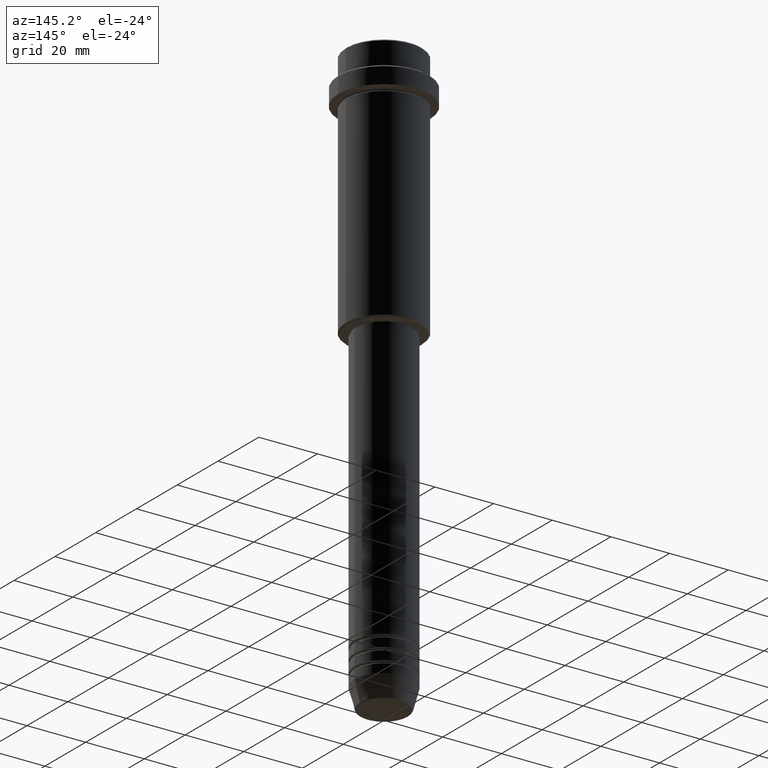
[diagram: clean part render]
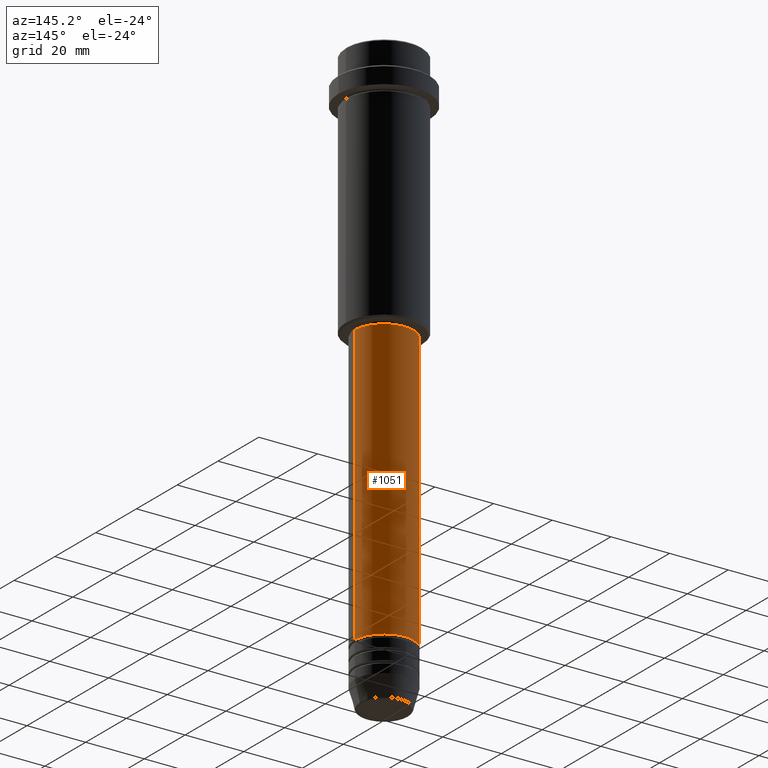
[diagram: same view with one face highlighted and labeled with its STEP entity id]
A machine part, auxiliary view. The second image highlights one B-rep face of the part: STEP entity #1051.
In plain terms, the highlighted cylindrical surface (edge-blend (fillet) strip) has radius 10 mm, axis along (-0, -0, 1).
Its self-contained STEP definition (entity closure, byte-faithful):
#16 = CARTESIAN_POINT ( 'NONE',  ( 10.00000000000000000, 0.000000000000000000, -180.9999999999999147 ) ) ;
#93 = EDGE_CURVE ( 'NONE', #169, #808, #902, .T. ) ;
#156 = VECTOR ( 'NONE', #1066, 1000.000000000000000 ) ;
#169 = VERTEX_POINT ( 'NONE', #1242 ) ;
#170 = FACE_OUTER_BOUND ( 'NONE', #351, .T. ) ;
#222 = CARTESIAN_POINT ( 'NONE',  ( 10.00000000000000178, 0.000000000000000000, 0.000000000000000000 ) ) ;
#233 = VECTOR ( 'NONE', #1300, 1000.000000000000000 ) ;
#329 = DIRECTION ( 'NONE',  ( -0.000000000000000000, -0.000000000000000000, 1.000000000000000000 ) ) ;
#351 = EDGE_LOOP ( 'NONE', ( #409, #992, #693, #920 ) ) ;
#385 = AXIS2_PLACEMENT_3D ( 'NONE', #505, #928, #510 ) ;
#397 = EDGE_CURVE ( 'NONE', #532, #808, #730, .T. ) ;
#409 = ORIENTED_EDGE ( 'NONE', *, *, #598, .T. ) ;
#462 = LINE ( 'NONE', #222, #233 ) ;
#490 = CYLINDRICAL_SURFACE ( 'NONE', #385, 10.00000000000000178 ) ;
#492 = CARTESIAN_POINT ( 'NONE',  ( -10.00000000000000178, 1.224646799147353454E-15, -86.00000000000000000 ) ) ;
#505 = CARTESIAN_POINT ( 'NONE',  ( 0.000000000000000000, 0.000000000000000000, 0.000000000000000000 ) ) ;
#510 = DIRECTION ( 'NONE',  ( 1.000000000000000000, 0.000000000000000000, 0.000000000000000000 ) ) ;
#532 = VERTEX_POINT ( 'NONE', #1260 ) ;
#560 = CARTESIAN_POINT ( 'NONE',  ( 0.000000000000000000, 0.000000000000000000, -180.9999999999999147 ) ) ;
#582 = CIRCLE ( 'NONE', #1389, 10.00000000000000000 ) ;
#598 = EDGE_CURVE ( 'NONE', #1015, #532, #582, .T. ) ;
#693 = ORIENTED_EDGE ( 'NONE', *, *, #93, .F. ) ;
#706 = CARTESIAN_POINT ( 'NONE',  ( -10.00000000000000178, 1.224646799147353454E-15, 0.000000000000000000 ) ) ;
#730 = LINE ( 'NONE', #706, #156 ) ;
#762 = DIRECTION ( 'NONE',  ( 1.000000000000000000, 0.000000000000000000, 0.000000000000000000 ) ) ;
#808 = VERTEX_POINT ( 'NONE', #492 ) ;
#902 = CIRCLE ( 'NONE', #1113, 10.00000000000000178 ) ;
#920 = ORIENTED_EDGE ( 'NONE', *, *, #1276, .F. ) ;
#928 = DIRECTION ( 'NONE',  ( -0.000000000000000000, -0.000000000000000000, 1.000000000000000000 ) ) ;
#989 = CARTESIAN_POINT ( 'NONE',  ( 0.000000000000000000, 0.000000000000000000, -86.00000000000000000 ) ) ;
#992 = ORIENTED_EDGE ( 'NONE', *, *, #397, .T. ) ;
#1015 = VERTEX_POINT ( 'NONE', #16 ) ;
#1051 = ADVANCED_FACE ( 'NONE', ( #170 ), #490, .T. ) ;
#1066 = DIRECTION ( 'NONE',  ( -0.000000000000000000, -0.000000000000000000, 1.000000000000000000 ) ) ;
#1083 = DIRECTION ( 'NONE',  ( 1.000000000000000000, 0.000000000000000000, 0.000000000000000000 ) ) ;
#1113 = AXIS2_PLACEMENT_3D ( 'NONE', #989, #1314, #1083 ) ;
#1242 = CARTESIAN_POINT ( 'NONE',  ( 10.00000000000000178, 0.000000000000000000, -86.00000000000000000 ) ) ;
#1260 = CARTESIAN_POINT ( 'NONE',  ( -10.00000000000000000, 1.224646799147353256E-15, -180.9999999999999147 ) ) ;
#1276 = EDGE_CURVE ( 'NONE', #1015, #169, #462, .T. ) ;
#1300 = DIRECTION ( 'NONE',  ( -0.000000000000000000, -0.000000000000000000, 1.000000000000000000 ) ) ;
#1314 = DIRECTION ( 'NONE',  ( -0.000000000000000000, -0.000000000000000000, 1.000000000000000000 ) ) ;
#1389 = AXIS2_PLACEMENT_3D ( 'NONE', #560, #329, #762 ) ;